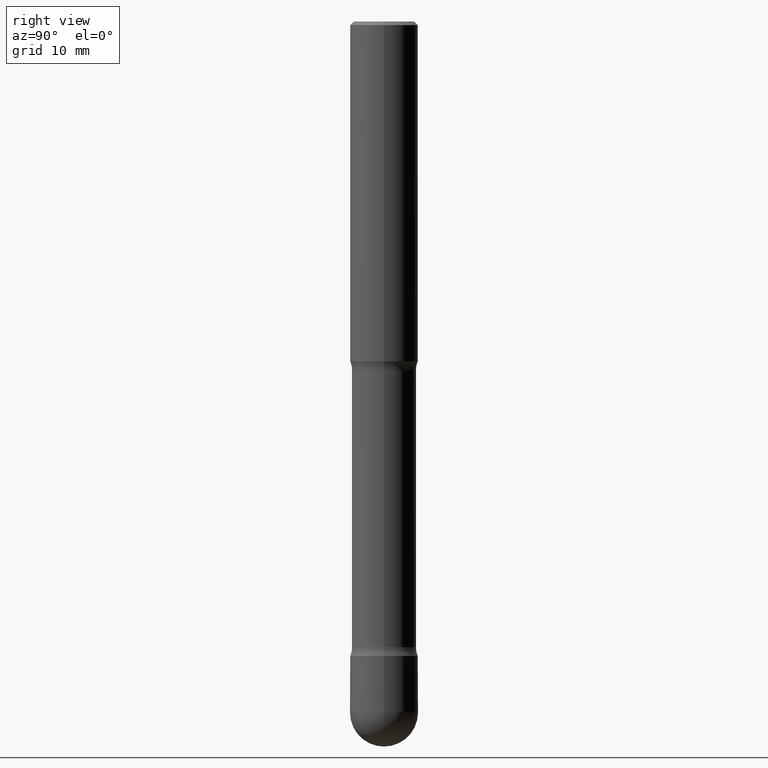
[diagram: clean part render]
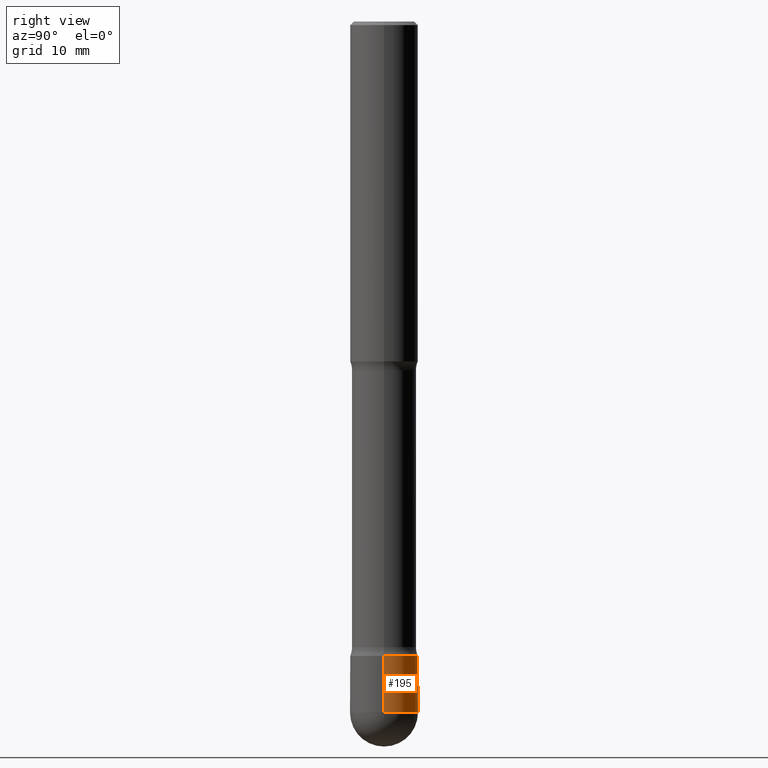
[diagram: same view with one face highlighted and labeled with its STEP entity id]
A machine part, right view. The second image highlights one B-rep face of the part: STEP entity #195.
In plain terms, the highlighted cylindrical surface (edge-blend (fillet) strip) has radius 4.7625 mm, axis along (-0, 0, 1).
Its self-contained STEP definition (entity closure, byte-faithful):
#2 = DIRECTION ( 'NONE',  ( -2.445468806185136597E-29, 3.491481338843145583E-15, 1.000000000000000000 ) ) ;
#24 = CARTESIAN_POINT ( 'NONE',  ( 9.323349823580833275E-29, -1.331127260433949088E-14, -3.812500000000000000 ) ) ;
#44 = ORIENTED_EDGE ( 'NONE', *, *, #413, .F. ) ;
#54 = VERTEX_POINT ( 'NONE', #540 ) ;
#91 = VERTEX_POINT ( 'NONE', #323 ) ;
#109 = EDGE_CURVE ( 'NONE', #54, #185, #114, .T. ) ;
#114 = CIRCLE ( 'NONE', #523, 0.1874999999999996669 ) ;
#127 = VECTOR ( 'NONE', #351, 39.37007874015748143 ) ;
#177 = CYLINDRICAL_SURFACE ( 'NONE', #543, 0.1874999999999996392 ) ;
#180 = DIRECTION ( 'NONE',  ( 1.000000000000000000, -6.982962677686265133E-15, 0.000000000000000000 ) ) ;
#185 = VERTEX_POINT ( 'NONE', #293 ) ;
#186 = CARTESIAN_POINT ( 'NONE',  ( 8.559140821647976968E-29, -1.222018468595100934E-14, -3.500000000000000000 ) ) ;
#195 = ADVANCED_FACE ( 'NONE', ( #342 ), #177, .T. ) ;
#204 = DIRECTION ( 'NONE',  ( -2.445468806185136597E-29, 3.491481338843145583E-15, 1.000000000000000000 ) ) ;
#209 = CARTESIAN_POINT ( 'NONE',  ( -0.1874999999999996392, 1.332267629550185285E-15, -9.223003294227931175E-30 ) ) ;
#214 = ORIENTED_EDGE ( 'NONE', *, *, #310, .F. ) ;
#225 = CIRCLE ( 'NONE', #470, 0.1874999999999996392 ) ;
#231 = EDGE_CURVE ( 'NONE', #531, #91, #260, .T. ) ;
#238 = ORIENTED_EDGE ( 'NONE', *, *, #109, .T. ) ;
#260 = LINE ( 'NONE', #209, #271 ) ;
#265 = LINE ( 'NONE', #452, #127 ) ;
#270 = EDGE_CURVE ( 'NONE', #185, #531, #324, .T. ) ;
#271 = VECTOR ( 'NONE', #438, 39.37007874015748143 ) ;
#293 = CARTESIAN_POINT ( 'NONE',  ( 1.309305502066266713E-15, 0.1874999999999864830, -3.812500000000000444 ) ) ;
#298 = CARTESIAN_POINT ( 'NONE',  ( 9.323349823580833275E-29, -1.331127260433949088E-14, -3.812500000000000000 ) ) ;
#310 = EDGE_CURVE ( 'NONE', #427, #91, #225, .T. ) ;
#323 = CARTESIAN_POINT ( 'NONE',  ( -0.1874999999999996392, -1.143346101559506542E-14, -3.500000000000000000 ) ) ;
#324 = CIRCLE ( 'NONE', #379, 0.1874999999999996669 ) ;
#337 = DIRECTION ( 'NONE',  ( 1.000000000000000000, -6.982962677686267499E-15, 4.876176775795935232E-29 ) ) ;
#339 = DIRECTION ( 'NONE',  ( -2.445468806185136597E-29, 3.491481338843145583E-15, 1.000000000000000000 ) ) ;
#342 = FACE_OUTER_BOUND ( 'NONE', #525, .T. ) ;
#351 = DIRECTION ( 'NONE',  ( -2.445468806185136877E-29, 3.491481338843145188E-15, 1.000000000000000000 ) ) ;
#379 = AXIS2_PLACEMENT_3D ( 'NONE', #298, #392, #180 ) ;
#384 = DIRECTION ( 'NONE',  ( 1.000000000000000000, -6.982962677686265133E-15, 0.000000000000000000 ) ) ;
#387 = CARTESIAN_POINT ( 'NONE',  ( 0.000000000000000000, 0.000000000000000000, 0.000000000000000000 ) ) ;
#392 = DIRECTION ( 'NONE',  ( -2.445468806185136597E-29, 3.491481338843145583E-15, 1.000000000000000000 ) ) ;
#399 = DIRECTION ( 'NONE',  ( 1.000000000000000000, -6.982962677686266711E-15, 0.000000000000000000 ) ) ;
#407 = ORIENTED_EDGE ( 'NONE', *, *, #231, .T. ) ;
#409 = ORIENTED_EDGE ( 'NONE', *, *, #270, .T. ) ;
#413 = EDGE_CURVE ( 'NONE', #54, #427, #265, .T. ) ;
#427 = VERTEX_POINT ( 'NONE', #481 ) ;
#438 = DIRECTION ( 'NONE',  ( -2.445468806185136877E-29, 3.491481338843145188E-15, 1.000000000000000000 ) ) ;
#452 = CARTESIAN_POINT ( 'NONE',  ( 0.1874999999999996392, -1.309305502066172642E-15, 9.142831454617361395E-30 ) ) ;
#470 = AXIS2_PLACEMENT_3D ( 'NONE', #186, #2, #399 ) ;
#481 = CARTESIAN_POINT ( 'NONE',  ( 0.1874999999999996392, -1.352949018801718119E-14, -3.500000000000000000 ) ) ;
#497 = CARTESIAN_POINT ( 'NONE',  ( -0.1874999999999996669, -1.143346101559506542E-14, -3.812500000000000000 ) ) ;
#523 = AXIS2_PLACEMENT_3D ( 'NONE', #24, #204, #384 ) ;
#525 = EDGE_LOOP ( 'NONE', ( #409, #407, #214, #44, #238 ) ) ;
#531 = VERTEX_POINT ( 'NONE', #497 ) ;
#540 = CARTESIAN_POINT ( 'NONE',  ( 0.1874999999999996669, -1.407503414721142196E-14, -3.812500000000000000 ) ) ;
#543 = AXIS2_PLACEMENT_3D ( 'NONE', #387, #339, #337 ) ;